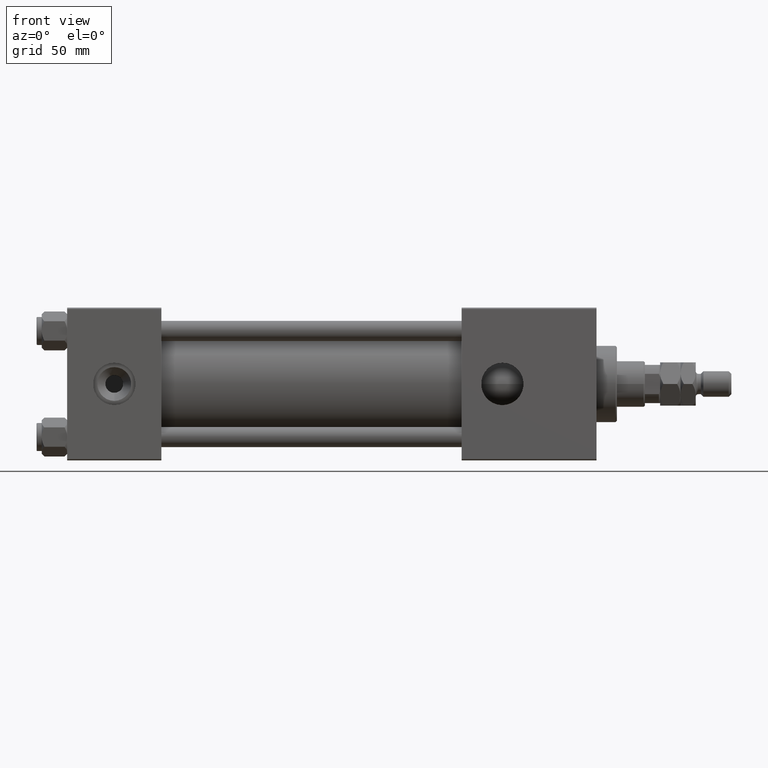
[diagram: clean part render]
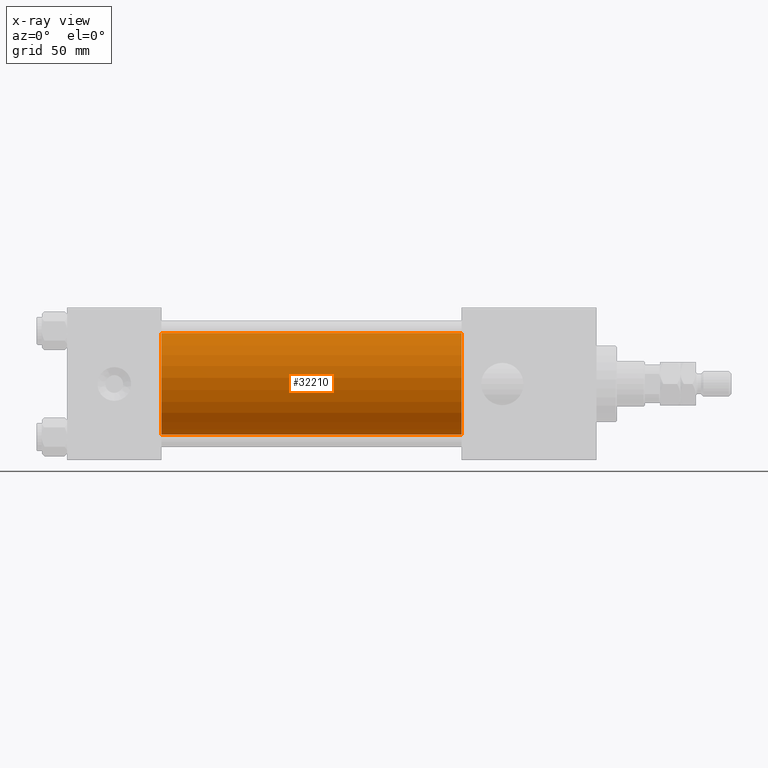
[diagram: x-ray — body ghosted, one internal face saturated and labeled with its STEP entity id]
A machine part, front view, then the same camera in x-ray: the body is ghosted and one INTERNAL B-rep face — a face not visible from any outside direction — is saturated and labeled: STEP entity #32210.
In plain terms, the highlighted cylindrical surface (partial cylindrical patch) has radius 20 mm, axis along (-1, -0, -0).
Its self-contained STEP definition (entity closure, byte-faithful):
#163 = DIRECTION ( 'NONE',  ( -1.000000000000000000, -0.000000000000000000, -0.000000000000000000 ) ) ;
#1491 = EDGE_CURVE ( 'NONE', #18848, #34950, #31637, .T. ) ;
#2504 = ORIENTED_EDGE ( 'NONE', *, *, #41315, .T. ) ;
#2688 = CIRCLE ( 'NONE', #3581, 20.00000000000000000 ) ;
#2757 = CARTESIAN_POINT ( 'NONE',  ( 155.0000000000000000, -1.527916156705042519E-16, -20.00000000000000000 ) ) ;
#3581 = AXIS2_PLACEMENT_3D ( 'NONE', #16108, #44707, #36002 ) ;
#5345 = DIRECTION ( 'NONE',  ( 1.000000000000000000, 0.000000000000000000, 0.000000000000000000 ) ) ;
#6018 = CARTESIAN_POINT ( 'NONE',  ( 37.00000000000000000, -1.527916156705042519E-16, -20.00000000000000000 ) ) ;
#11950 = ORIENTED_EDGE ( 'NONE', *, *, #40775, .F. ) ;
#12870 = AXIS2_PLACEMENT_3D ( 'NONE', #43219, #51656, #14345 ) ;
#13777 = DIRECTION ( 'NONE',  ( 0.000000000000000000, 0.000000000000000000, -1.000000000000000000 ) ) ;
#14208 = DIRECTION ( 'NONE',  ( -1.000000000000000000, -0.000000000000000000, -0.000000000000000000 ) ) ;
#14345 = DIRECTION ( 'NONE',  ( 0.000000000000000000, 0.000000000000000000, 1.000000000000000000 ) ) ;
#16108 = CARTESIAN_POINT ( 'NONE',  ( 155.0000000000000000, -2.602085213965210642E-15, 0.000000000000000000 ) ) ;
#16839 = ORIENTED_EDGE ( 'NONE', *, *, #1491, .T. ) ;
#17984 = ORIENTED_EDGE ( 'NONE', *, *, #26546, .F. ) ;
#18848 = VERTEX_POINT ( 'NONE', #28246 ) ;
#19608 = AXIS2_PLACEMENT_3D ( 'NONE', #29341, #5345, #13777 ) ;
#22660 = VECTOR ( 'NONE', #163, 1000.000000000000000 ) ;
#26546 = EDGE_CURVE ( 'NONE', #47124, #34950, #43094, .T. ) ;
#28246 = CARTESIAN_POINT ( 'NONE',  ( 155.0000000000000000, -1.527916156705042519E-16, -20.00000000000000000 ) ) ;
#28774 = LINE ( 'NONE', #48922, #22660 ) ;
#29341 = CARTESIAN_POINT ( 'NONE',  ( 37.00000000000000000, -2.602085213965210642E-15, 0.000000000000000000 ) ) ;
#30720 = CYLINDRICAL_SURFACE ( 'NONE', #12870, 20.00000000000000000 ) ;
#31637 = LINE ( 'NONE', #2757, #43636 ) ;
#32210 = ADVANCED_FACE ( 'NONE', ( #51379 ), #30720, .F. ) ;
#34950 = VERTEX_POINT ( 'NONE', #6018 ) ;
#36002 = DIRECTION ( 'NONE',  ( 0.000000000000000000, 0.000000000000000000, -1.000000000000000000 ) ) ;
#40280 = CARTESIAN_POINT ( 'NONE',  ( 155.0000000000000000, -2.602085213965210642E-15, 20.00000000000000000 ) ) ;
#40775 = EDGE_CURVE ( 'NONE', #53874, #47124, #28774, .T. ) ;
#41315 = EDGE_CURVE ( 'NONE', #53874, #18848, #2688, .T. ) ;
#43094 = CIRCLE ( 'NONE', #19608, 20.00000000000000000 ) ;
#43219 = CARTESIAN_POINT ( 'NONE',  ( 155.0000000000000000, -2.602085213965210642E-15, 0.000000000000000000 ) ) ;
#43636 = VECTOR ( 'NONE', #14208, 1000.000000000000000 ) ;
#44707 = DIRECTION ( 'NONE',  ( 1.000000000000000000, 0.000000000000000000, 0.000000000000000000 ) ) ;
#47124 = VERTEX_POINT ( 'NONE', #51892 ) ;
#47537 = EDGE_LOOP ( 'NONE', ( #2504, #16839, #17984, #11950 ) ) ;
#48922 = CARTESIAN_POINT ( 'NONE',  ( 155.0000000000000000, -2.602085213965210642E-15, 20.00000000000000000 ) ) ;
#51379 = FACE_OUTER_BOUND ( 'NONE', #47537, .T. ) ;
#51656 = DIRECTION ( 'NONE',  ( -1.000000000000000000, -0.000000000000000000, -0.000000000000000000 ) ) ;
#51892 = CARTESIAN_POINT ( 'NONE',  ( 37.00000000000000000, -2.602085213965210642E-15, 20.00000000000000000 ) ) ;
#53874 = VERTEX_POINT ( 'NONE', #40280 ) ;